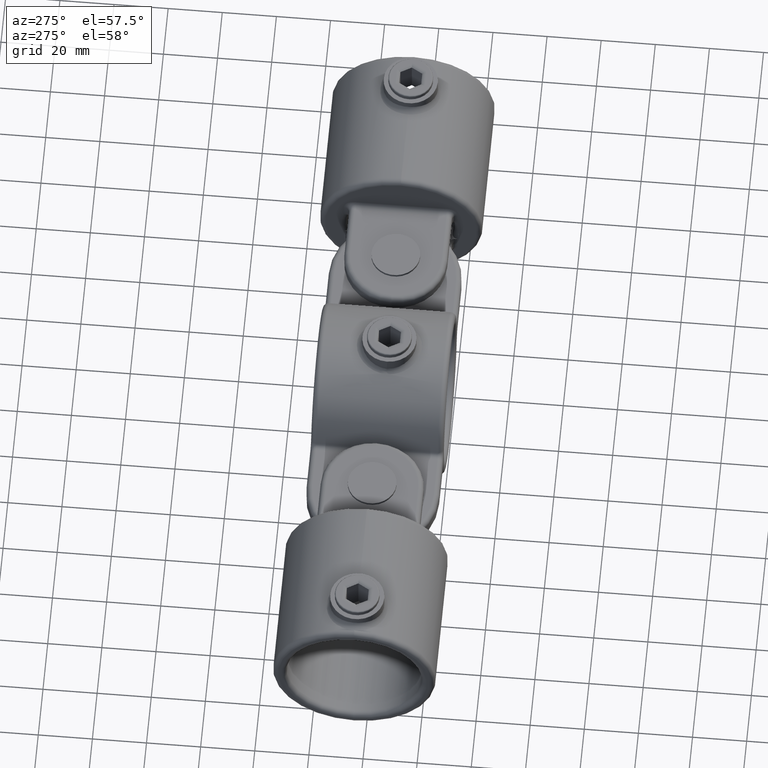
[diagram: clean part render]
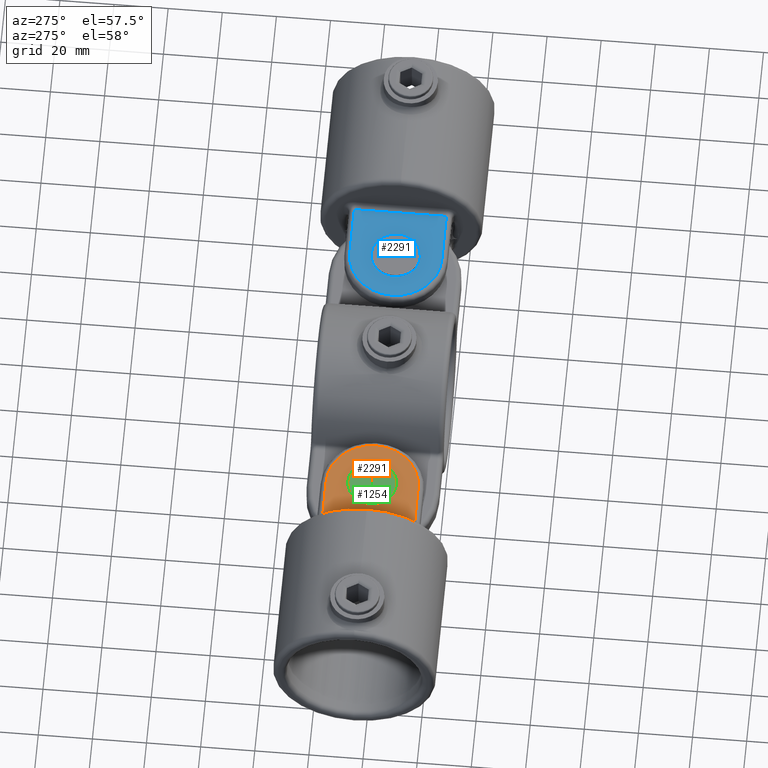
[diagram: same view with three faces highlighted in distinct colors, each labeled with its STEP entity id]
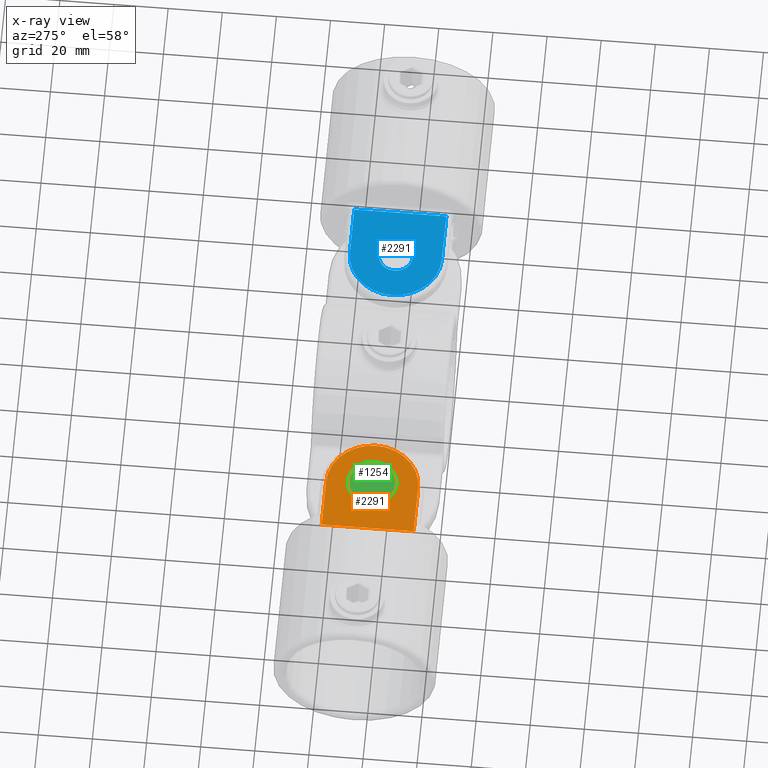
[diagram: x-ray of the same camera — body ghosted, the three highlighted faces saturated]
A machine part, auxiliary view with three faces highlighted in distinct colors.
The next image is the same camera in x-ray (body ghosted, the three faces saturated) — at least one of them is partly hidden behind the body in this view.
Their STEP definitions:

[orange] entity #2291 — the highlighted planar face has unit normal (0, 0, -1).
#36 = CIRCLE ( 'NONE', #4105, 17.00000000000000000 ) ;
#49 = CARTESIAN_POINT ( 'NONE',  ( -17.00000000000000000, 96.00000000000000000, 12.50000000000000000 ) ) ;
#91 = FACE_OUTER_BOUND ( 'NONE', #1994, .T. ) ;
#393 = VECTOR ( 'NONE', #5440, 1000.000000000000000 ) ;
#584 = DIRECTION ( 'NONE',  ( -1.000000000000000000, 0.000000000000000000, -0.000000000000000000 ) ) ;
#695 = VECTOR ( 'NONE', #4314, 1000.000000000000000 ) ;
#773 = ORIENTED_EDGE ( 'NONE', *, *, #3827, .T. ) ;
#805 = EDGE_CURVE ( 'NONE', #3628, #830, #4852, .T. ) ;
#830 = VERTEX_POINT ( 'NONE', #3212 ) ;
#1237 = EDGE_CURVE ( 'NONE', #2269, #2269, #5531, .T. ) ;
#1369 = ORIENTED_EDGE ( 'NONE', *, *, #805, .T. ) ;
#1603 = AXIS2_PLACEMENT_3D ( 'NONE', #4348, #2507, #584 ) ;
#1641 = VECTOR ( 'NONE', #3964, 1000.000000000000000 ) ;
#1692 = EDGE_LOOP ( 'NONE', ( #2154 ) ) ;
#1994 = EDGE_LOOP ( 'NONE', ( #5690, #3127, #1369, #773, #3424 ) ) ;
#2092 = CARTESIAN_POINT ( 'NONE',  ( 17.00000000000000355, 96.00000000000000000, 12.50000000000000000 ) ) ;
#2116 = CIRCLE ( 'NONE', #2908, 17.00000000000000000 ) ;
#2154 = ORIENTED_EDGE ( 'NONE', *, *, #1237, .T. ) ;
#2269 = VERTEX_POINT ( 'NONE', #2694 ) ;
#2291 = ADVANCED_FACE ( 'NONE', ( #2629, #91 ), #4885, .F. ) ;
#2292 = EDGE_CURVE ( 'NONE', #3994, #3628, #5142, .T. ) ;
#2486 = CARTESIAN_POINT ( 'NONE',  ( -19.00000000000000000, 58.00000000000000000, 12.50000000000000000 ) ) ;
#2507 = DIRECTION ( 'NONE',  ( 0.000000000000000000, 0.000000000000000000, -1.000000000000000000 ) ) ;
#2629 = FACE_BOUND ( 'NONE', #1692, .T. ) ;
#2638 = DIRECTION ( 'NONE',  ( -0.000000000000000000, -0.000000000000000000, 1.000000000000000000 ) ) ;
#2694 = CARTESIAN_POINT ( 'NONE',  ( -6.250000000000002665, 77.00000000000000000, 12.50000000000000000 ) ) ;
#2808 = CARTESIAN_POINT ( 'NONE',  ( 0.000000000000000000, 77.00000000000000000, 12.50000000000000000 ) ) ;
#2908 = AXIS2_PLACEMENT_3D ( 'NONE', #2808, #5888, #5853 ) ;
#3102 = VERTEX_POINT ( 'NONE', #5927 ) ;
#3127 = ORIENTED_EDGE ( 'NONE', *, *, #2292, .T. ) ;
#3212 = CARTESIAN_POINT ( 'NONE',  ( 17.00000000000000000, 77.00000000000000000, 12.50000000000000000 ) ) ;
#3424 = ORIENTED_EDGE ( 'NONE', *, *, #6101, .T. ) ;
#3593 = LINE ( 'NONE', #49, #695 ) ;
#3628 = VERTEX_POINT ( 'NONE', #4128 ) ;
#3827 = EDGE_CURVE ( 'NONE', #830, #3102, #2116, .T. ) ;
#3906 = EDGE_CURVE ( 'NONE', #4617, #3994, #3593, .T. ) ;
#3964 = DIRECTION ( 'NONE',  ( 1.000000000000000000, -0.000000000000000000, 0.000000000000000000 ) ) ;
#3994 = VERTEX_POINT ( 'NONE', #4068 ) ;
#4000 = AXIS2_PLACEMENT_3D ( 'NONE', #4510, #4648, #5908 ) ;
#4068 = CARTESIAN_POINT ( 'NONE',  ( -17.00000000000000000, 58.00000000000000000, 12.50000000000000000 ) ) ;
#4105 = AXIS2_PLACEMENT_3D ( 'NONE', #4976, #2638, #5041 ) ;
#4128 = CARTESIAN_POINT ( 'NONE',  ( 17.00000000000000355, 58.00000000000000000, 12.50000000000000000 ) ) ;
#4314 = DIRECTION ( 'NONE',  ( 0.000000000000000000, -1.000000000000000000, 0.000000000000000000 ) ) ;
#4348 = CARTESIAN_POINT ( 'NONE',  ( -19.00000000000000000, 96.00000000000000000, 12.50000000000000000 ) ) ;
#4510 = CARTESIAN_POINT ( 'NONE',  ( 0.000000000000000000, 77.00000000000000000, 12.50000000000000000 ) ) ;
#4617 = VERTEX_POINT ( 'NONE', #4882 ) ;
#4648 = DIRECTION ( 'NONE',  ( 0.000000000000000000, 0.000000000000000000, -1.000000000000000000 ) ) ;
#4852 = LINE ( 'NONE', #2092, #393 ) ;
#4882 = CARTESIAN_POINT ( 'NONE',  ( -17.00000000000000000, 77.00000000000000000, 12.50000000000000000 ) ) ;
#4885 = PLANE ( 'NONE',  #1603 ) ;
#4976 = CARTESIAN_POINT ( 'NONE',  ( 0.000000000000000000, 77.00000000000000000, 12.50000000000000000 ) ) ;
#5041 = DIRECTION ( 'NONE',  ( -1.000000000000000000, 0.000000000000000000, 0.000000000000000000 ) ) ;
#5142 = LINE ( 'NONE', #2486, #1641 ) ;
#5440 = DIRECTION ( 'NONE',  ( -0.000000000000000000, 1.000000000000000000, -0.000000000000000000 ) ) ;
#5531 = CIRCLE ( 'NONE', #4000, 6.250000000000002665 ) ;
#5690 = ORIENTED_EDGE ( 'NONE', *, *, #3906, .T. ) ;
#5853 = DIRECTION ( 'NONE',  ( -1.000000000000000000, 0.000000000000000000, 0.000000000000000000 ) ) ;
#5888 = DIRECTION ( 'NONE',  ( -0.000000000000000000, -0.000000000000000000, 1.000000000000000000 ) ) ;
#5908 = DIRECTION ( 'NONE',  ( -1.000000000000000000, 0.000000000000000000, 0.000000000000000000 ) ) ;
#5927 = CARTESIAN_POINT ( 'NONE',  ( 0.000000000000000000, 94.00000000000000000, 12.50000000000000000 ) ) ;
#6101 = EDGE_CURVE ( 'NONE', #3102, #4617, #36, .T. ) ;

[blue] entity #2291 — the highlighted planar face has unit normal (0, 0, -1).
#36 = CIRCLE ( 'NONE', #4105, 17.00000000000000000 ) ;
#49 = CARTESIAN_POINT ( 'NONE',  ( -17.00000000000000000, 96.00000000000000000, 12.50000000000000000 ) ) ;
#91 = FACE_OUTER_BOUND ( 'NONE', #1994, .T. ) ;
#393 = VECTOR ( 'NONE', #5440, 1000.000000000000000 ) ;
#584 = DIRECTION ( 'NONE',  ( -1.000000000000000000, 0.000000000000000000, -0.000000000000000000 ) ) ;
#695 = VECTOR ( 'NONE', #4314, 1000.000000000000000 ) ;
#773 = ORIENTED_EDGE ( 'NONE', *, *, #3827, .T. ) ;
#805 = EDGE_CURVE ( 'NONE', #3628, #830, #4852, .T. ) ;
#830 = VERTEX_POINT ( 'NONE', #3212 ) ;
#1237 = EDGE_CURVE ( 'NONE', #2269, #2269, #5531, .T. ) ;
#1369 = ORIENTED_EDGE ( 'NONE', *, *, #805, .T. ) ;
#1603 = AXIS2_PLACEMENT_3D ( 'NONE', #4348, #2507, #584 ) ;
#1641 = VECTOR ( 'NONE', #3964, 1000.000000000000000 ) ;
#1692 = EDGE_LOOP ( 'NONE', ( #2154 ) ) ;
#1994 = EDGE_LOOP ( 'NONE', ( #5690, #3127, #1369, #773, #3424 ) ) ;
#2092 = CARTESIAN_POINT ( 'NONE',  ( 17.00000000000000355, 96.00000000000000000, 12.50000000000000000 ) ) ;
#2116 = CIRCLE ( 'NONE', #2908, 17.00000000000000000 ) ;
#2154 = ORIENTED_EDGE ( 'NONE', *, *, #1237, .T. ) ;
#2269 = VERTEX_POINT ( 'NONE', #2694 ) ;
#2291 = ADVANCED_FACE ( 'NONE', ( #2629, #91 ), #4885, .F. ) ;
#2292 = EDGE_CURVE ( 'NONE', #3994, #3628, #5142, .T. ) ;
#2486 = CARTESIAN_POINT ( 'NONE',  ( -19.00000000000000000, 58.00000000000000000, 12.50000000000000000 ) ) ;
#2507 = DIRECTION ( 'NONE',  ( 0.000000000000000000, 0.000000000000000000, -1.000000000000000000 ) ) ;
#2629 = FACE_BOUND ( 'NONE', #1692, .T. ) ;
#2638 = DIRECTION ( 'NONE',  ( -0.000000000000000000, -0.000000000000000000, 1.000000000000000000 ) ) ;
#2694 = CARTESIAN_POINT ( 'NONE',  ( -6.250000000000002665, 77.00000000000000000, 12.50000000000000000 ) ) ;
#2808 = CARTESIAN_POINT ( 'NONE',  ( 0.000000000000000000, 77.00000000000000000, 12.50000000000000000 ) ) ;
#2908 = AXIS2_PLACEMENT_3D ( 'NONE', #2808, #5888, #5853 ) ;
#3102 = VERTEX_POINT ( 'NONE', #5927 ) ;
#3127 = ORIENTED_EDGE ( 'NONE', *, *, #2292, .T. ) ;
#3212 = CARTESIAN_POINT ( 'NONE',  ( 17.00000000000000000, 77.00000000000000000, 12.50000000000000000 ) ) ;
#3424 = ORIENTED_EDGE ( 'NONE', *, *, #6101, .T. ) ;
#3593 = LINE ( 'NONE', #49, #695 ) ;
#3628 = VERTEX_POINT ( 'NONE', #4128 ) ;
#3827 = EDGE_CURVE ( 'NONE', #830, #3102, #2116, .T. ) ;
#3906 = EDGE_CURVE ( 'NONE', #4617, #3994, #3593, .T. ) ;
#3964 = DIRECTION ( 'NONE',  ( 1.000000000000000000, -0.000000000000000000, 0.000000000000000000 ) ) ;
#3994 = VERTEX_POINT ( 'NONE', #4068 ) ;
#4000 = AXIS2_PLACEMENT_3D ( 'NONE', #4510, #4648, #5908 ) ;
#4068 = CARTESIAN_POINT ( 'NONE',  ( -17.00000000000000000, 58.00000000000000000, 12.50000000000000000 ) ) ;
#4105 = AXIS2_PLACEMENT_3D ( 'NONE', #4976, #2638, #5041 ) ;
#4128 = CARTESIAN_POINT ( 'NONE',  ( 17.00000000000000355, 58.00000000000000000, 12.50000000000000000 ) ) ;
#4314 = DIRECTION ( 'NONE',  ( 0.000000000000000000, -1.000000000000000000, 0.000000000000000000 ) ) ;
#4348 = CARTESIAN_POINT ( 'NONE',  ( -19.00000000000000000, 96.00000000000000000, 12.50000000000000000 ) ) ;
#4510 = CARTESIAN_POINT ( 'NONE',  ( 0.000000000000000000, 77.00000000000000000, 12.50000000000000000 ) ) ;
#4617 = VERTEX_POINT ( 'NONE', #4882 ) ;
#4648 = DIRECTION ( 'NONE',  ( 0.000000000000000000, 0.000000000000000000, -1.000000000000000000 ) ) ;
#4852 = LINE ( 'NONE', #2092, #393 ) ;
#4882 = CARTESIAN_POINT ( 'NONE',  ( -17.00000000000000000, 77.00000000000000000, 12.50000000000000000 ) ) ;
#4885 = PLANE ( 'NONE',  #1603 ) ;
#4976 = CARTESIAN_POINT ( 'NONE',  ( 0.000000000000000000, 77.00000000000000000, 12.50000000000000000 ) ) ;
#5041 = DIRECTION ( 'NONE',  ( -1.000000000000000000, 0.000000000000000000, 0.000000000000000000 ) ) ;
#5142 = LINE ( 'NONE', #2486, #1641 ) ;
#5440 = DIRECTION ( 'NONE',  ( -0.000000000000000000, 1.000000000000000000, -0.000000000000000000 ) ) ;
#5531 = CIRCLE ( 'NONE', #4000, 6.250000000000002665 ) ;
#5690 = ORIENTED_EDGE ( 'NONE', *, *, #3906, .T. ) ;
#5853 = DIRECTION ( 'NONE',  ( -1.000000000000000000, 0.000000000000000000, 0.000000000000000000 ) ) ;
#5888 = DIRECTION ( 'NONE',  ( -0.000000000000000000, -0.000000000000000000, 1.000000000000000000 ) ) ;
#5908 = DIRECTION ( 'NONE',  ( -1.000000000000000000, 0.000000000000000000, 0.000000000000000000 ) ) ;
#5927 = CARTESIAN_POINT ( 'NONE',  ( 0.000000000000000000, 94.00000000000000000, 12.50000000000000000 ) ) ;
#6101 = EDGE_CURVE ( 'NONE', #3102, #4617, #36, .T. ) ;

[green] entity #1254 — the highlighted planar face has unit normal (0, 0, 1).
#254 = AXIS2_PLACEMENT_3D ( 'NONE', #2747, #1754, #3198 ) ;
#304 = PLANE ( 'NONE',  #5095 ) ;
#1172 = DIRECTION ( 'NONE',  ( 0.000000000000000000, 1.000000000000000000, 0.000000000000000000 ) ) ;
#1254 = ADVANCED_FACE ( 'NONE', ( #5919 ), #304, .T. ) ;
#1334 = CARTESIAN_POINT ( 'NONE',  ( 0.000000000000000000, 26.50000000000000000, 9.000000000000000000 ) ) ;
#1754 = DIRECTION ( 'NONE',  ( 0.000000000000000000, 1.000000000000000000, 0.000000000000000000 ) ) ;
#2747 = CARTESIAN_POINT ( 'NONE',  ( 0.000000000000000000, 26.50000000000000000, 0.000000000000000000 ) ) ;
#3198 = DIRECTION ( 'NONE',  ( 0.000000000000000000, 0.000000000000000000, 1.000000000000000000 ) ) ;
#3402 = EDGE_LOOP ( 'NONE', ( #5437 ) ) ;
#3610 = EDGE_CURVE ( 'NONE', #5765, #5765, #5696, .T. ) ;
#3920 = DIRECTION ( 'NONE',  ( 0.000000000000000000, -0.000000000000000000, 1.000000000000000000 ) ) ;
#4081 = CARTESIAN_POINT ( 'NONE',  ( 0.000000000000000000, 26.50000000000000000, 0.000000000000000000 ) ) ;
#5095 = AXIS2_PLACEMENT_3D ( 'NONE', #4081, #1172, #3920 ) ;
#5437 = ORIENTED_EDGE ( 'NONE', *, *, #3610, .T. ) ;
#5696 = CIRCLE ( 'NONE', #254, 9.000000000000000000 ) ;
#5765 = VERTEX_POINT ( 'NONE', #1334 ) ;
#5919 = FACE_OUTER_BOUND ( 'NONE', #3402, .T. ) ;